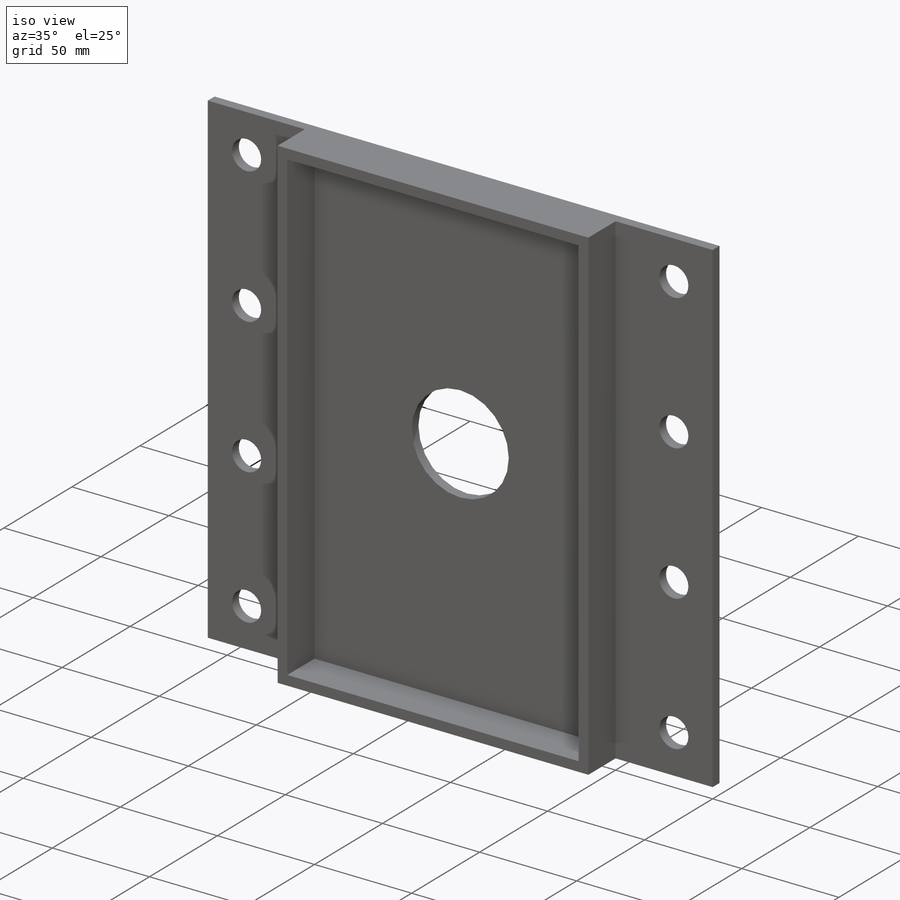
[diagram: iso view]
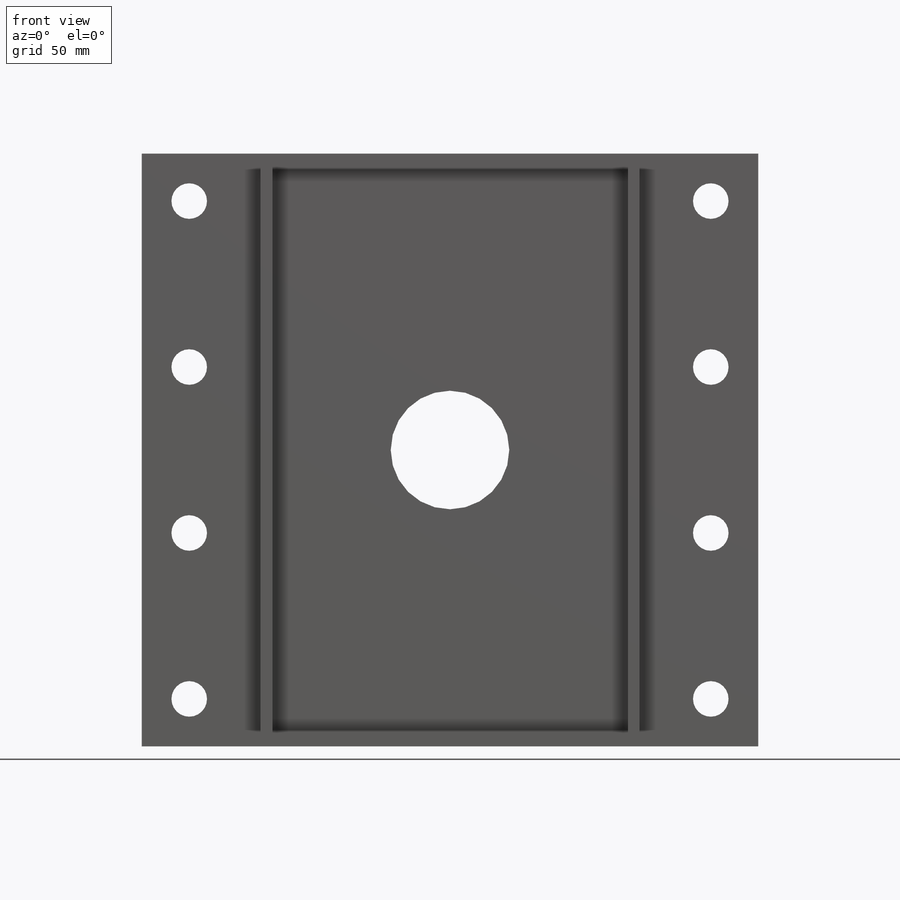
[diagram: front view]
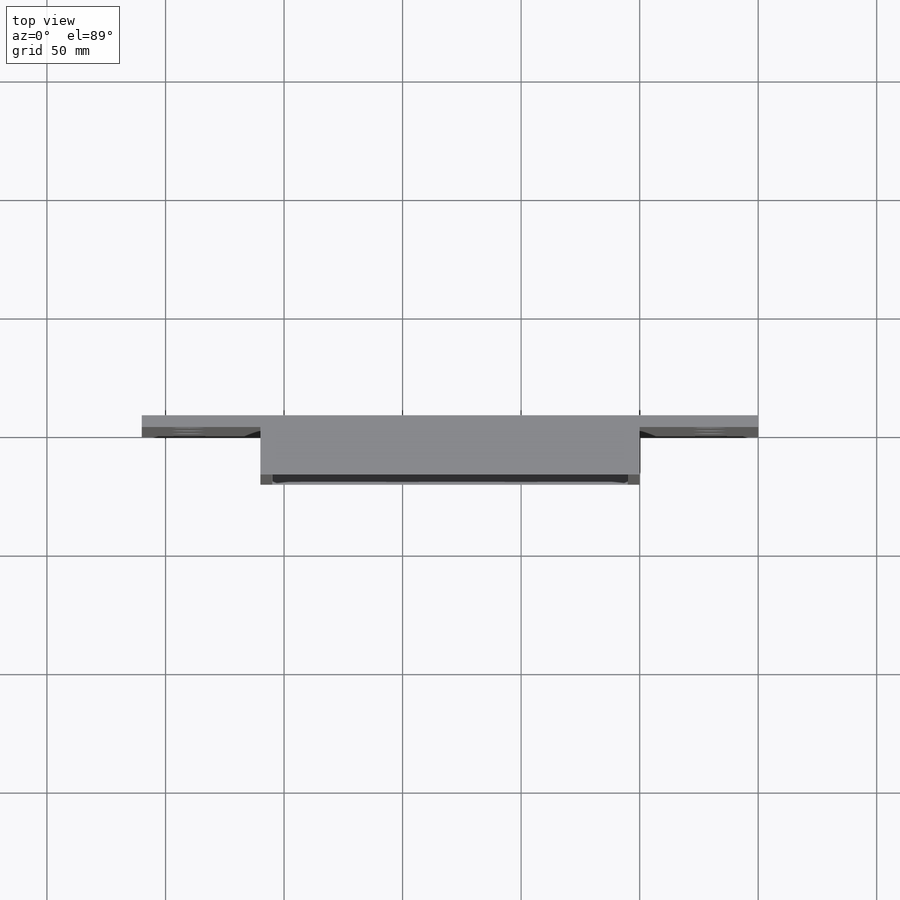
[diagram: top view]
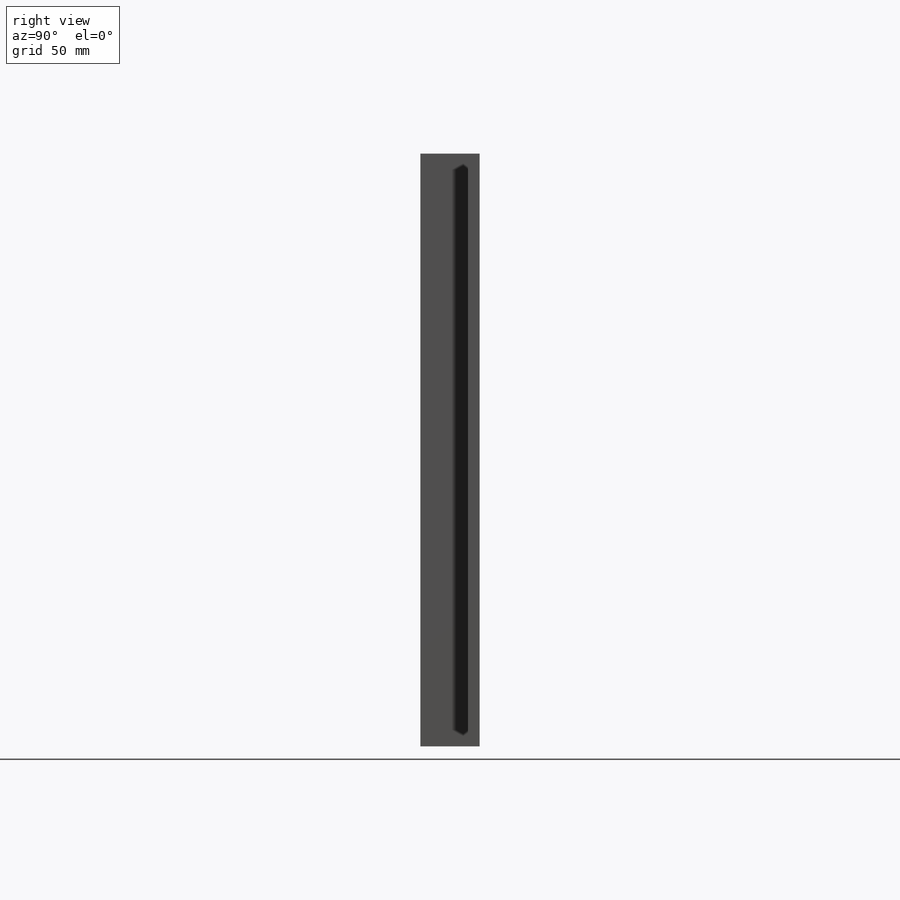
[diagram: right view]
SOLIDWORKS PART (.sldprt)
format: sldprt  version: not decoded by parser v0  size: 190,976 bytes
history: native  units: mm
features: sketch x4, plane x3, extrude x2, cut_extrude x2, material x1 (+9 scaffold rows collapsed)
feature tree (21):
  scaffold x9  (default folders/planes/origin — collapsed)
  material  "Matériau <non spécifié>"
  plane  "Plan de face"
  plane  "Plan de dessus"
  plane  "Plan de droite"
  sketch  "Esquisse1"  dims[D1=160.0mm D2=250.0mm D3=5.0mm]
  extrude  "Boss.-Extru.1"  Depth=20mm
  sketch  "Esquisse2"  dims[D1=260.0mm D2=130.0mm]
  extrude  "Boss.-Extru.2"  Depth=5mm
  sketch  "Esquisse3"  dims[D1=50.0mm]
  cut_extrude  "Enlèv. mat.-Extru.1"  Depth=5mm
  sketch  "Esquisse4"  dims[c1.D6=15.0mm c1.D7=15.0mm c1.D1=20.0mm c1.D2=20.0mm c1.D3=20.0mm c1.D4=~30.615083mm c2.D4=90.0deg c3.D4=20.0mm c3.D5=4.0]
  cut_extrude  "Enlèv. mat.-Extru.2"  Depth=10mm
decode coverage: 8 of 8 modeling features carry decoded parameters
note: ~ marks probable driven/reference dimensions
note: suppression state not decoded; provenance and decode notes live in map.json
